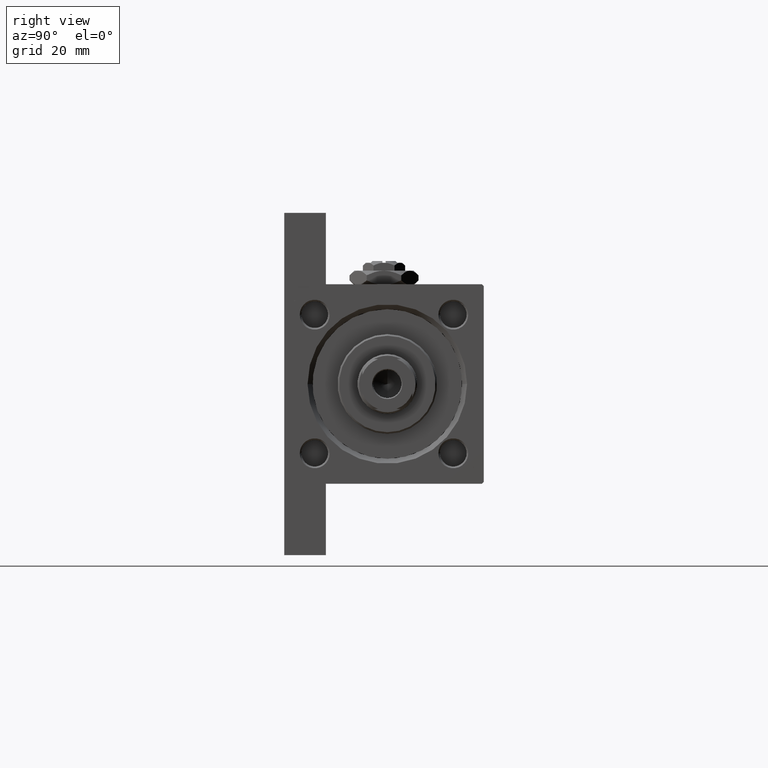
[diagram: clean part render]
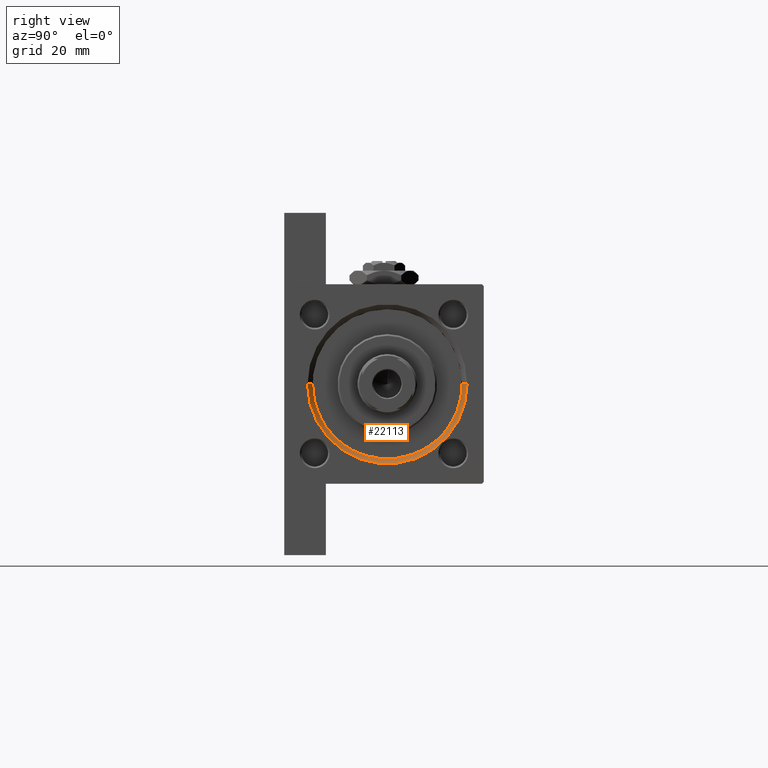
[diagram: same view with one face highlighted and labeled with its STEP entity id]
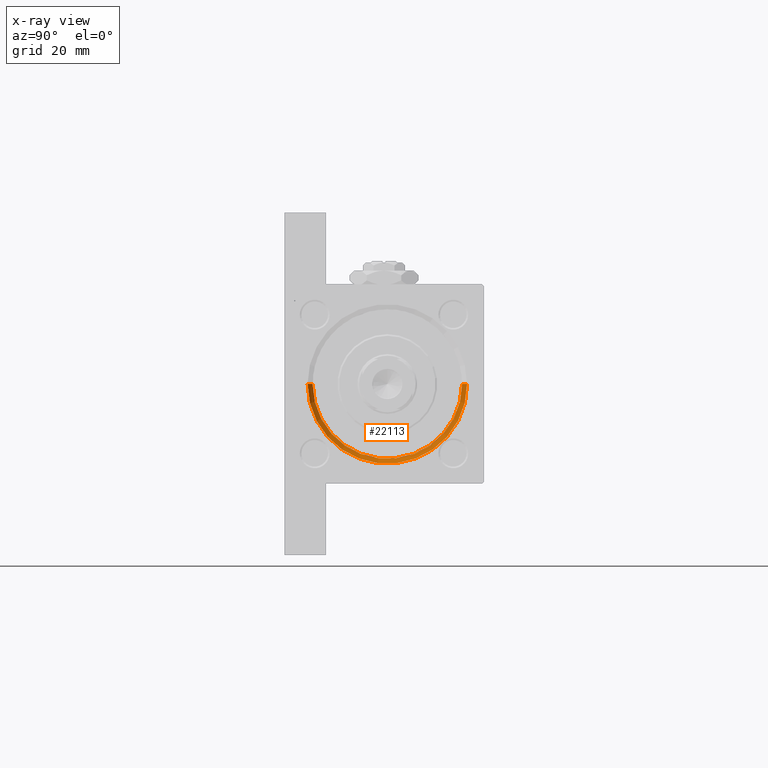
[diagram: x-ray of the same camera — body ghosted, the highlighted face saturated]
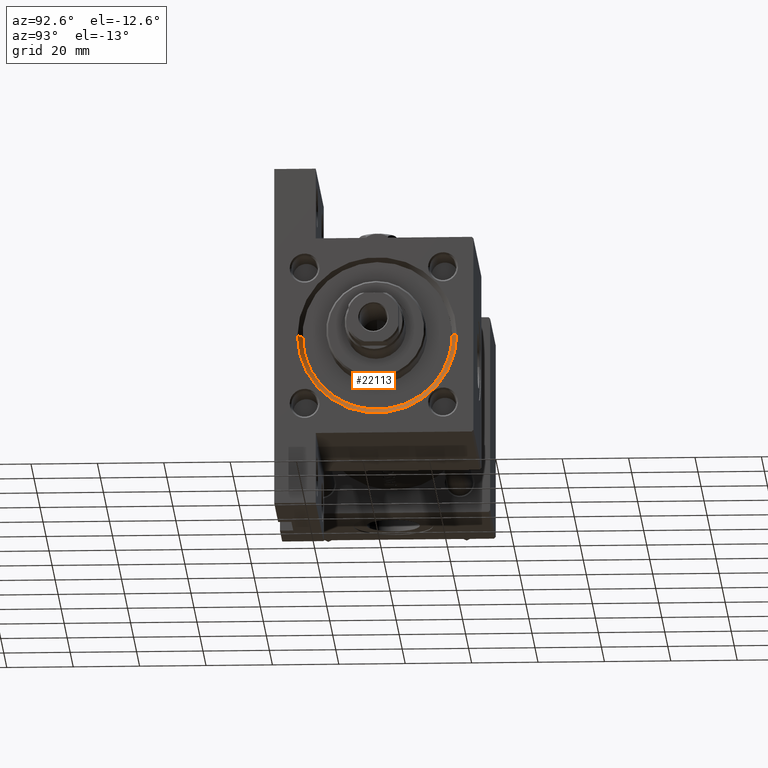
[diagram: same view with one face highlighted and labeled with its STEP entity id]
A machine part, right view. The second image highlights one B-rep face of the part: STEP entity #22113.
The next image is the same camera in x-ray: the body ghosted, the highlighted face saturated — about 0% of this face is hidden behind the body in this view.
A second angle (auxiliary view) of the same face is appended — the face is thin or edge-on in the first view.
In plain terms, the highlighted conical surface has half-angle 45 deg.
Its self-contained STEP definition (entity closure, byte-faithful):
#2106 = CARTESIAN_POINT ( 'NONE',  ( 146.4999999999999432, 2.755455298081545172E-15, 23.50000000000001066 ) ) ;
#5017 = CARTESIAN_POINT ( 'NONE',  ( 146.4999999999999432, 2.755455298081545172E-15, 23.50000000000001066 ) ) ;
#5704 = LINE ( 'NONE', #2106, #17218 ) ;
#7106 = DIRECTION ( 'NONE',  ( 0.000000000000000000, 0.000000000000000000, 1.000000000000000000 ) ) ;
#7522 = VERTEX_POINT ( 'NONE', #33393 ) ;
#10224 = EDGE_CURVE ( 'NONE', #42813, #7522, #5704, .T. ) ;
#10534 = EDGE_CURVE ( 'NONE', #21394, #42813, #26999, .T. ) ;
#15874 = FACE_OUTER_BOUND ( 'NONE', #46282, .T. ) ;
#16422 = ORIENTED_EDGE ( 'NONE', *, *, #41031, .T. ) ;
#17218 = VECTOR ( 'NONE', #28808, 1000.000000000000000 ) ;
#20572 = AXIS2_PLACEMENT_3D ( 'NONE', #34330, #38689, #7106 ) ;
#21314 = CONICAL_SURFACE ( 'NONE', #29466, 22.50000000000000355, 0.7853981633974415066 ) ;
#21351 = DIRECTION ( 'NONE',  ( 0.7071067811865524577, 0.000000000000000000, -0.7071067811865426878 ) ) ;
#21394 = VERTEX_POINT ( 'NONE', #27133 ) ;
#21848 = ORIENTED_EDGE ( 'NONE', *, *, #25855, .F. ) ;
#22113 = ADVANCED_FACE ( 'NONE', ( #15874 ), #21314, .F. ) ;
#24371 = DIRECTION ( 'NONE',  ( 1.000000000000000000, 0.000000000000000000, 0.000000000000000000 ) ) ;
#25855 = EDGE_CURVE ( 'NONE', #7522, #43493, #42705, .T. ) ;
#26999 = CIRCLE ( 'NONE', #33575, 22.50000000000000355 ) ;
#27133 = CARTESIAN_POINT ( 'NONE',  ( 146.4999999999999432, 0.000000000000000000, -21.49999999999999645 ) ) ;
#28486 = DIRECTION ( 'NONE',  ( 0.000000000000000000, 0.000000000000000000, 1.000000000000000000 ) ) ;
#28808 = DIRECTION ( 'NONE',  ( 0.7071067811865524577, 8.659560562354874926E-17, 0.7071067811865426878 ) ) ;
#29245 = CARTESIAN_POINT ( 'NONE',  ( 146.4999999999999432, 0.000000000000000000, 1.000000000000007772 ) ) ;
#29466 = AXIS2_PLACEMENT_3D ( 'NONE', #50528, #43313, #31504 ) ;
#30793 = VECTOR ( 'NONE', #21351, 1000.000000000000000 ) ;
#31504 = DIRECTION ( 'NONE',  ( 0.000000000000000000, 0.000000000000000000, -1.000000000000000000 ) ) ;
#33393 = CARTESIAN_POINT ( 'NONE',  ( 148.0000000000000000, 2.939152317953652628E-15, 25.00000000000004619 ) ) ;
#33575 = AXIS2_PLACEMENT_3D ( 'NONE', #29245, #24371, #28486 ) ;
#34330 = CARTESIAN_POINT ( 'NONE',  ( 148.0000000000000000, 0.000000000000000000, 1.000000000000007772 ) ) ;
#37925 = CARTESIAN_POINT ( 'NONE',  ( 148.0000000000000000, 0.000000000000000000, -23.00000000000003197 ) ) ;
#38554 = ORIENTED_EDGE ( 'NONE', *, *, #10534, .F. ) ;
#38689 = DIRECTION ( 'NONE',  ( -1.000000000000000000, 0.000000000000000000, -0.000000000000000000 ) ) ;
#40865 = LINE ( 'NONE', #44966, #30793 ) ;
#41031 = EDGE_CURVE ( 'NONE', #21394, #43493, #40865, .T. ) ;
#41879 = ORIENTED_EDGE ( 'NONE', *, *, #10224, .F. ) ;
#42705 = CIRCLE ( 'NONE', #20572, 24.00000000000003908 ) ;
#42813 = VERTEX_POINT ( 'NONE', #5017 ) ;
#43313 = DIRECTION ( 'NONE',  ( 1.000000000000000000, 0.000000000000000000, 0.000000000000000000 ) ) ;
#43493 = VERTEX_POINT ( 'NONE', #37925 ) ;
#44966 = CARTESIAN_POINT ( 'NONE',  ( 146.4999999999999432, 0.000000000000000000, -21.49999999999999645 ) ) ;
#46282 = EDGE_LOOP ( 'NONE', ( #41879, #38554, #16422, #21848 ) ) ;
#50528 = CARTESIAN_POINT ( 'NONE',  ( 146.4999999999999432, 0.000000000000000000, 1.000000000000007772 ) ) ;